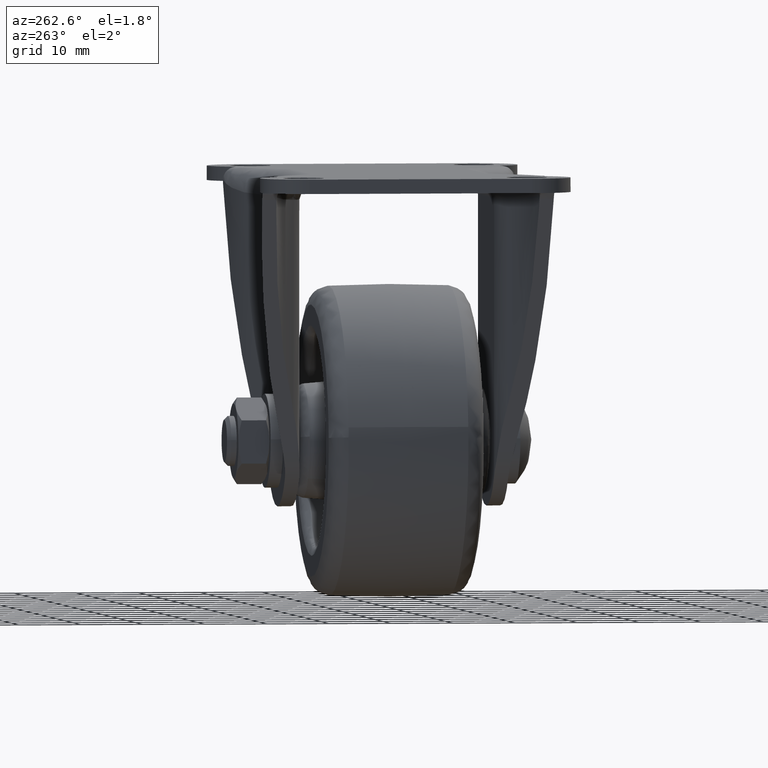
[diagram: clean part render]
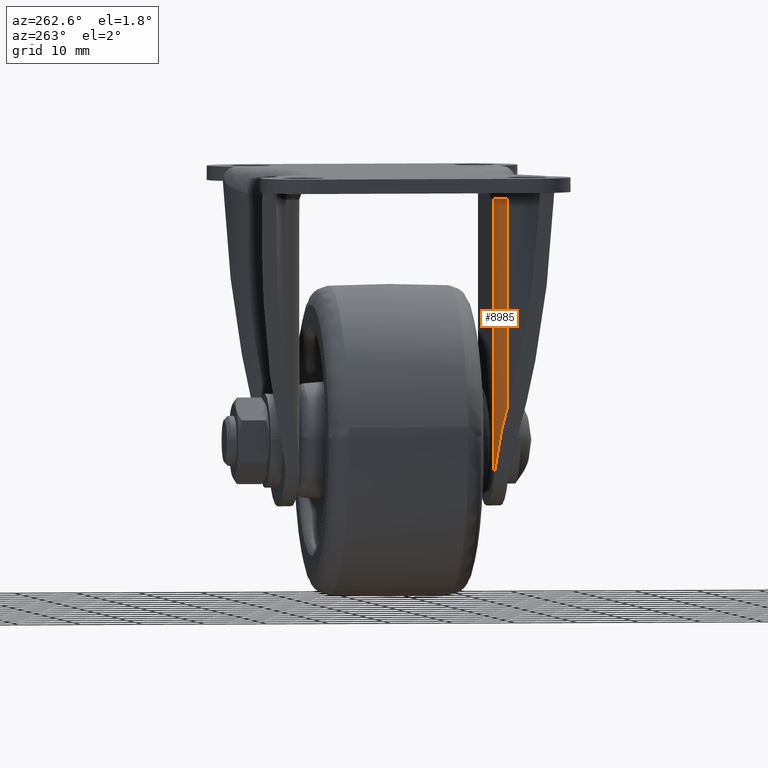
[diagram: same view with one face highlighted and labeled with its STEP entity id]
A machine part, auxiliary view. The second image highlights one B-rep face of the part: STEP entity #8985.
In plain terms, the highlighted face is a freeform B-spline surface patch.
Its self-contained STEP definition (entity closure, byte-faithful):
#7065=CARTESIAN_POINT('',(-14.055269925592061,-17.240000057345199,-4.050000000000000));
#7066=VERTEX_POINT('',#7065);
#7125=CARTESIAN_POINT('',(-9.928238000000000,-15.699999999999999,-4.050000000000000));
#7126=VERTEX_POINT('',#7125);
#7140=CARTESIAN_POINT('',(-14.055269925592061,-17.240000057345199,-4.050000000000000));
#7141=CARTESIAN_POINT('',(-12.279079117941592,-15.700000000000006,-4.049999999999999));
#7142=CARTESIAN_POINT('',(-9.928238000000000,-15.699999999999999,-4.050000000000000));
#7150=(BOUNDED_CURVE()B_SPLINE_CURVE(2,(#7140,#7141,#7142),.UNSPECIFIED.,.F.,.U.)CURVE()GEOMETRIC_REPRESENTATION_ITEM()QUASI_UNIFORM_CURVE()RATIONAL_B_SPLINE_CURVE((1.0,0.936897972805623,1.0))REPRESENTATION_ITEM(''));
#7151=EDGE_CURVE('',#7066,#7126,#7150,.T.);
#8446=CARTESIAN_POINT('',(-11.985270999999999,-16.045286301012400,-44.550108000000087));
#8447=VERTEX_POINT('',#8446);
#8453=CARTESIAN_POINT('',(-9.928238000000000,-15.699999999999999,-48.594740267560503));
#8454=VERTEX_POINT('',#8453);
#8455=CARTESIAN_POINT('',(-9.928238000000000,-15.699999999999999,-48.594740267560503));
#8456=CARTESIAN_POINT('',(-10.162287825850401,-15.699999999999999,-48.288778193957590));
#8457=CARTESIAN_POINT('',(-10.379965269189251,-15.712929446276631,-47.974995305189523));
#8458=CARTESIAN_POINT('',(-10.784285011426830,-15.755122324060141,-47.331937691734900));
#8459=CARTESIAN_POINT('',(-10.970920453198680,-15.784427896136000,-47.002662687404793));
#8460=CARTESIAN_POINT('',(-11.313788637233900,-15.851766700246200,-46.328343204751150));
#8461=CARTESIAN_POINT('',(-11.470020365369299,-15.889821749834070,-45.983299956440682));
#8462=CARTESIAN_POINT('',(-11.646117687742800,-15.938628449527620,-45.541692626874493));
#8463=CARTESIAN_POINT('',(-11.680375221382761,-15.948453085685880,-45.452854857457893));
#8464=CARTESIAN_POINT('',(-11.746952273366240,-15.968127712678800,-45.274130780360842));
#8465=CARTESIAN_POINT('',(-11.779308545517059,-15.977989389074830,-45.184136296134049));
#8466=CARTESIAN_POINT('',(-11.873131709063690,-16.007364160008631,-44.913464580338683));
#8467=CARTESIAN_POINT('',(-11.931334303568290,-16.026654076176790,-44.732199909285377));
#8468=CARTESIAN_POINT('',(-11.985271000000010,-16.045286301012371,-44.550108000000087));
#8469=B_SPLINE_CURVE_WITH_KNOTS('',3,(#8455,#8456,#8457,#8458,#8459,#8460,#8461,#8462,#8463,#8464,#8465,#8466,#8467,#8468),.UNSPECIFIED.,.F.,.U.,(4,2,2,2,2,2,4),(0.0,0.250000000000000,0.500000000000000,0.750000000000001,0.812499999999999,0.874999999999998,1.0),.UNSPECIFIED.);
#8470=EDGE_CURVE('',#8454,#8447,#8469,.T.);
#8658=CARTESIAN_POINT('',(-14.055269925592061,-17.240000057345199,-37.561728175795402));
#8659=VERTEX_POINT('',#8658);
#8673=CARTESIAN_POINT('',(-11.985271000000029,-16.045286301012379,-44.550108000000122));
#8674=CARTESIAN_POINT('',(-13.135675051931601,-16.442688966829760,-40.666308657494348));
#8675=CARTESIAN_POINT('',(-14.055269925592061,-17.240000057345199,-37.561728175795402));
#8683=(BOUNDED_CURVE()B_SPLINE_CURVE(2,(#8673,#8674,#8675),.UNSPECIFIED.,.F.,.U.)CURVE()GEOMETRIC_REPRESENTATION_ITEM()QUASI_UNIFORM_CURVE()RATIONAL_B_SPLINE_CURVE((1.0,0.981845042242044,1.0))REPRESENTATION_ITEM(''));
#8684=EDGE_CURVE('',#8447,#8659,#8683,.T.);
#8723=CARTESIAN_POINT('',(-14.055269925592061,-17.240000057345199,-37.561728175795402));
#8724=CARTESIAN_POINT('',(-14.055269925592061,-17.240000057345199,-4.050000000000000));
#8725=QUASI_UNIFORM_CURVE('',1,(#8723,#8724),.UNSPECIFIED.,.F.,.U.);
#8726=EDGE_CURVE('',#8659,#7066,#8725,.T.);
#8960=CARTESIAN_POINT('',(-14.184456307978660,-17.355152778096219,-49.708358774249511));
#8961=CARTESIAN_POINT('',(-14.184456307978660,-17.355152778096219,-2.908541030643754));
#8962=CARTESIAN_POINT('',(-12.283998991043944,-15.613704493699425,-49.708358774249504));
#8963=CARTESIAN_POINT('',(-12.283998991043944,-15.613704493699425,-2.908541030643754));
#8964=CARTESIAN_POINT('',(-9.707906368418904,-15.703854038213155,-49.708358774249525));
#8965=CARTESIAN_POINT('',(-9.707906368418904,-15.703854038213155,-2.908541030643754));
#8973=(BOUNDED_SURFACE()B_SPLINE_SURFACE(1,2,((#8960,#8962,#8964),(#8961,#8963,#8965)),.UNSPECIFIED.,.F.,.F.,.U.)B_SPLINE_SURFACE_WITH_KNOTS((2,2),(3,3),(0.0,46.799817743605772),(0.0,4.955922686095545),.UNSPECIFIED.)GEOMETRIC_REPRESENTATION_ITEM()RATIONAL_B_SPLINE_SURFACE(((1.0,0.921570539310809,0.991469649171821),(1.0,0.921570539310809,0.991469649171821)))REPRESENTATION_ITEM('')SURFACE());
#8974=ORIENTED_EDGE('',*,*,#8726,.T.);
#8975=ORIENTED_EDGE('',*,*,#7151,.T.);
#8976=CARTESIAN_POINT('',(-9.928238000000000,-15.699999999999999,-48.594740267560503));
#8977=CARTESIAN_POINT('',(-9.928238000000000,-15.699999999999999,-4.050000000000000));
#8978=QUASI_UNIFORM_CURVE('',1,(#8976,#8977),.UNSPECIFIED.,.F.,.U.);
#8979=EDGE_CURVE('',#8454,#7126,#8978,.T.);
#8980=ORIENTED_EDGE('',*,*,#8979,.F.);
#8981=ORIENTED_EDGE('',*,*,#8470,.T.);
#8982=ORIENTED_EDGE('',*,*,#8684,.T.);
#8983=EDGE_LOOP('',(#8974,#8975,#8980,#8981,#8982));
#8984=FACE_OUTER_BOUND('',#8983,.T.);
#8985=ADVANCED_FACE('',(#8984),#8973,.T.);